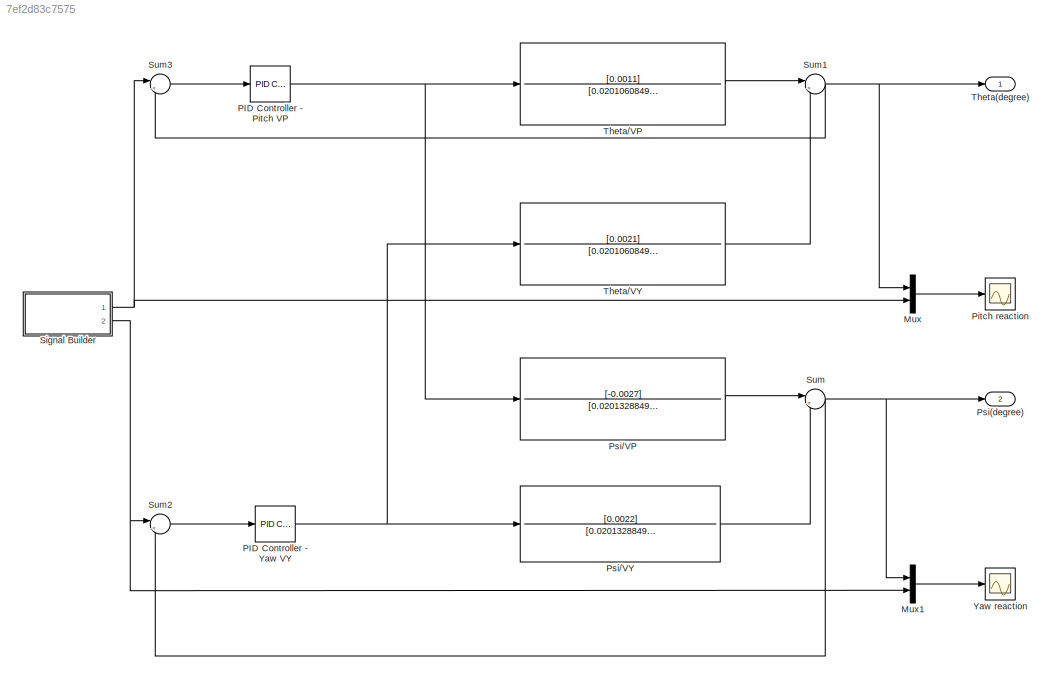
MODEL slx_7ef2d83c7575
KIND model
CONFIG AbsTol = auto
CONFIG EnableMultiTasking = off
CONFIG FixedStep = auto
CONFIG MaxStep = auto
CONFIG MinStep = auto
CONFIG RelTol = 1e-3
CONFIG SampleTimeConstraint = Unconstrained
CONFIG Solver = VariableStepAuto
CONFIG SolverName = VariableStepAuto
CONFIG StartTime = 0.0
CONFIG StopTime = 100
BLOCK [Mux] Mux
  DisplayOption = bar
  Inputs = 2
  Ports = [2, 1]
BLOCK [Mux] Mux1
  DisplayOption = bar
  Inputs = 2
  Ports = [2, 1]
BLOCK [Reference] PID Controller - Pitch VP  REF=simulink/Continuous/PID Controller
  Ports = [1, 1]
  SourceBlock = simulink/Continuous/PID Controller
  SourceProductBaseCode = SL
  SourceProductName = Simulink
  SourceType = PID 1dof
BLOCK [Reference] PID Controller - Yaw VY  REF=simulink/Continuous/PID Controller
  Ports = [1, 1]
  SourceBlock = simulink/Continuous/PID Controller
  SourceProductBaseCode = SL
  SourceProductName = Simulink
  SourceType = PID 1dof
BLOCK [Scope] Pitch reaction
  Floating = off
  NumInputPorts = 1
  Ports = [1]
  ScopeSpecificationString = Simulink.scopes.TimeScopeBlockCfg('CurrentConfiguration', extmgr.ConfigurationSet(extmgr.Configuration('Core','General UI',true),extmgr.Configuration('Core','Source UI',true),extmgr.Configuration('Sources','WiredSimulink',true),extmgr.Configuration('Visuals','Time Domain',true,'SerializedDisplays',{struct('MinYLimReal','-26.11983','MaxYLimReal','28.49002','YLabelReal','','MinYLimMag','0.00000','Ma...<+1469ch>
BLOCK [Outport] Psi(degree)
  IconDisplay = Port number
  Port = 2
BLOCK [TransferFcn] Psi//VP
  Denominator = [0.02013288491 0.022 0]
  Numerator = [-0.0027]
BLOCK [TransferFcn] Psi//VY
  Denominator = [0.02013288491 0.022 0]
  Numerator = [0.0022]
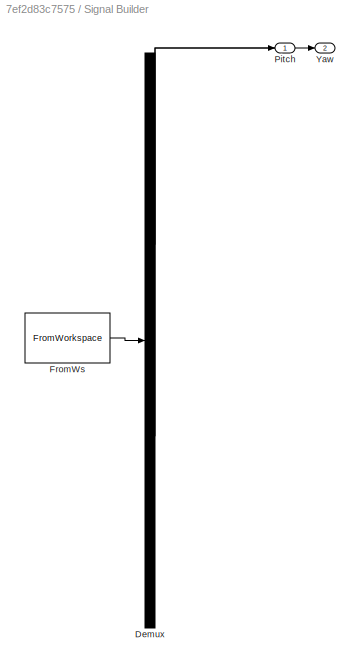
BLOCK [SubSystem] Signal Builder
  ClipboardFcn = sigbuilder_block('clipboard');
  CloseFcn = sigbuilder_block('close');
  ContinueFcn = sigbuilder_block('continue');
  CopyFcn = sigbuilder_block('copy');
  DeleteFcn = sigbuilder_block('delete');
  LoadFcn = sigbuilder_block('load');
  MaskHideContents = on
  ModelCloseFcn = sigbuilder_block('modelClose');
  NameChangeFcn = sigbuilder_block('namechange');
  OpenFcn = sigbuilder_block('open',[5.25 -31.5 936 404.25 ]);
  PauseFcn = sigbuilder_block('pause');
  Ports = [0, 2]
  PreSaveFcn = sigbuilder_block('preSave');
  RequestExecContextInheritance = off
  StartFcn = sigbuilder_block('start');
  StopFcn = sigbuilder_block('stop');
  Tag = STV Subsys
BLOCK [Demux] Signal Builder/Demux
  Outputs = 2
  Ports = [1, 2]
  Tag = STV Demux
BLOCK [FromWorkspace] Signal Builder/FromWs
  SampleTime = 0
  Tag = STV FromWs
  VariableName = tuvar
  ZeroCross = on
BLOCK [Outport] Signal Builder/Pitch
  IconDisplay = Port number
  Tag = STV Outport
BLOCK [Outport] Signal Builder/Yaw
  IconDisplay = Port number
  Port = 2
  Tag = STV Outport
BLOCK [Sum] Sum
  IconShape = round
  InputSameDT = off
  Inputs = |++
  OutDataTypeStr = Inherit: Inherit via internal rule
  Ports = [2, 1]
  SaturateOnIntegerOverflow = off
BLOCK [Sum] Sum1
  IconShape = round
  InputSameDT = off
  Inputs = |++
  OutDataTypeStr = Inherit: Inherit via internal rule
  Ports = [2, 1]
  SaturateOnIntegerOverflow = off
BLOCK [Sum] Sum2
  IconShape = round
  InputSameDT = off
  Inputs = |+-
  OutDataTypeStr = Inherit: Inherit via internal rule
  Ports = [2, 1]
  SaturateOnIntegerOverflow = off
BLOCK [Sum] Sum3
  IconShape = round
  InputSameDT = off
  Inputs = |+-
  OutDataTypeStr = Inherit: Inherit via internal rule
  Ports = [2, 1]
  SaturateOnIntegerOverflow = off
BLOCK [Outport] Theta(degree)
  IconDisplay = Port number
BLOCK [TransferFcn] Theta//VP
  Denominator = [0.02010608491 0.00711 0.0375]
  Numerator = [0.0011]
BLOCK [TransferFcn] Theta//VY
  Denominator = [0.02010608491 0.00711 0.0375]
  Numerator = [0.0021]
BLOCK [Scope] Yaw reaction
  Floating = off
  NumInputPorts = 1
  Ports = [1]
  ScopeSpecificationString = Simulink.scopes.TimeScopeBlockCfg('CurrentConfiguration', extmgr.ConfigurationSet(extmgr.Configuration('Core','General UI',true),extmgr.Configuration('Core','Source UI',true),extmgr.Configuration('Sources','WiredSimulink',true,'DataLoggingVariableName','ScopeData1'),extmgr.Configuration('Visuals','Time Domain',true,'SerializedDisplays',{struct('MinYLimReal','-78.32281','MaxYLimReal','65.58712','YL...<+1507ch>
LINE Mux1:1 -> Yaw reaction:1
LINE Mux:1 -> Pitch reaction:1
NET PID Controller - Pitch VP:1 -> Psi//VP:1, Theta//VP:1
NET PID Controller - Yaw VY:1 -> Psi//VY:1, Theta//VY:1
LINE Psi//VP:1 -> Sum:1
LINE Psi//VY:1 -> Sum:2
NET Signal Builder:1 -> Mux:2, Sum3:1
NET Signal Builder:2 -> Mux1:2, Sum2:1
NET Sum1:1 -> Mux:1, Sum3:2, Theta(degree):1
LINE Sum2:1 -> PID Controller - Yaw VY:1
LINE Sum3:1 -> PID Controller - Pitch VP:1
NET Sum:1 -> Mux1:1, Psi(degree):1, Sum2:2
LINE Theta//VP:1 -> Sum1:1
LINE Theta//VY:1 -> Sum1:2
note: NET lines group one-source signal fan-out (src -> all destinations, sorted); 1:1 wires keep LINE
